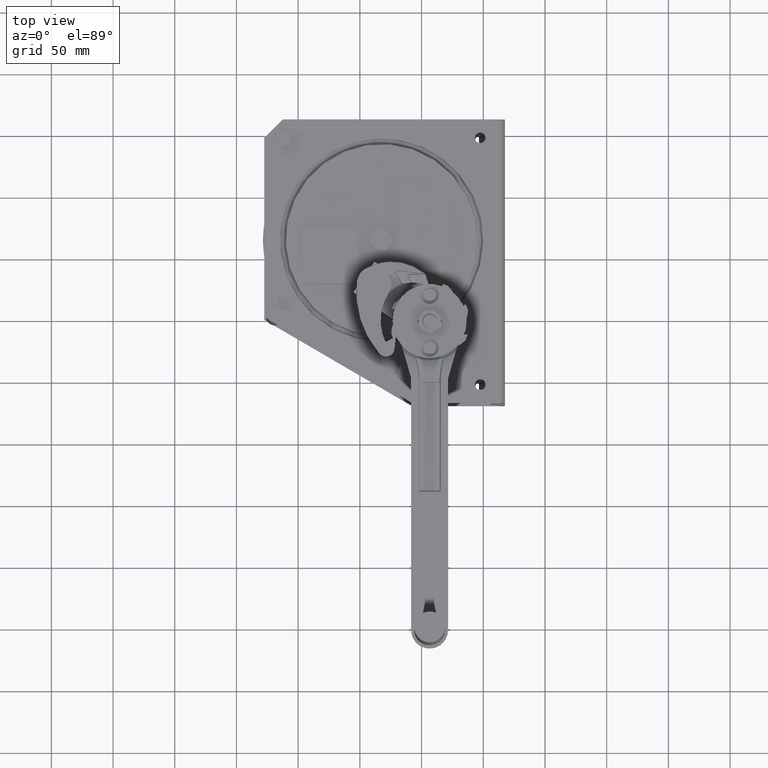
[diagram: clean part render]
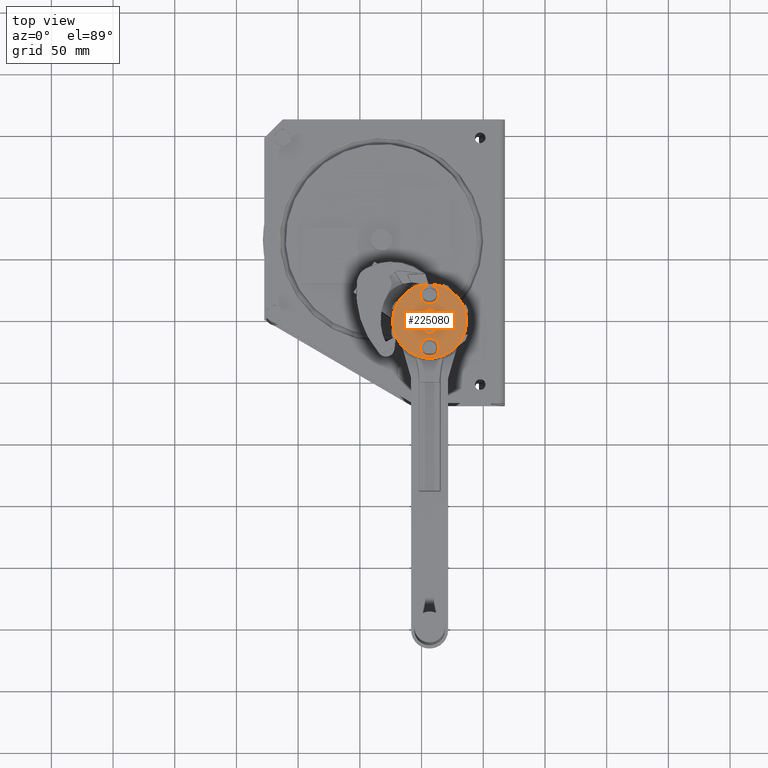
[diagram: same view with one face highlighted and labeled with its STEP entity id]
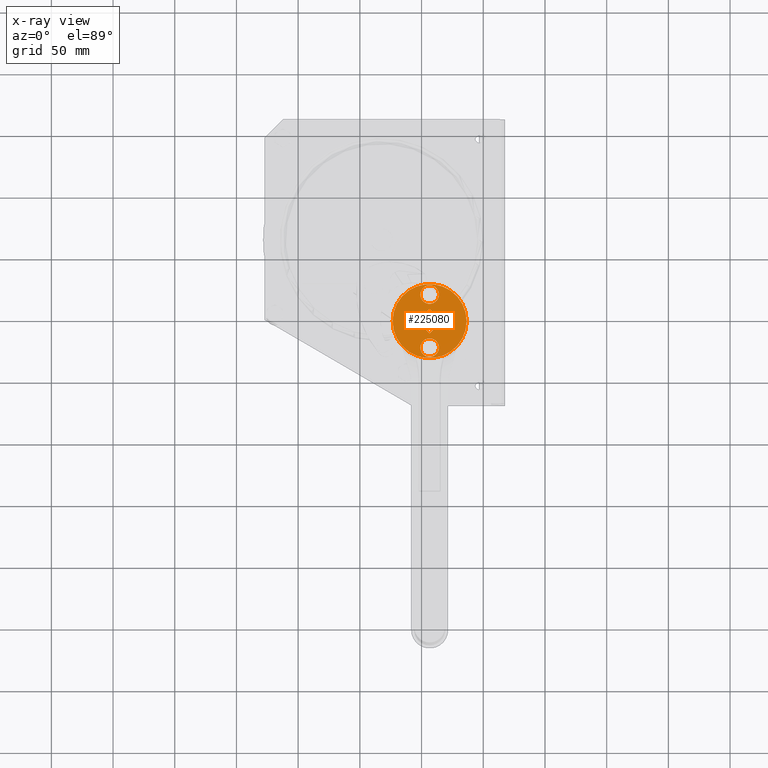
[diagram: x-ray of the same camera — body ghosted, the highlighted face saturated]
A machine part, top view. The second image highlights one B-rep face of the part: STEP entity #225080.
The next image is the same camera in x-ray: the body ghosted, the highlighted face saturated — about 0% of this face is hidden behind the body in this view.
In plain terms, the highlighted planar face has unit normal (0, -0, 1).
Its self-contained STEP definition (entity closure, byte-faithful):
#1410=CARTESIAN_POINT('',(2.72425594956256,242.824761012951,
20.2372583002029));
#1420=VERTEX_POINT('',#1410);
#1450=CARTESIAN_POINT('',(-16.6020037060522,223.498501357336,
20.2372583002029));
#1460=DIRECTION('',(0.707106781186548,0.707106781186547,0.));
#1470=VECTOR('',#1460,1.);
#1480=LINE('',#1450,#1470);
#1490=CARTESIAN_POINT('',(3.90798504668055E-13,240.100505063389,
20.2372583002029));
#1500=VERTEX_POINT('',#1490);
#1510=EDGE_CURVE('',#1500,#1420,#1480,.T.);
#2880=CARTESIAN_POINT('',(7.50000000000039,271.5,20.2372583002029));
#2890=VERTEX_POINT('',#2880);
#2920=CARTESIAN_POINT('',(3.90798504668055E-13,271.5,20.2372583002029));
#2930=DIRECTION('',(0.,0.,1.));
#2940=DIRECTION('',(1.,0.,0.));
#2950=AXIS2_PLACEMENT_3D('',#2920,#2930,#2940);
#2960=CIRCLE('',#2950,7.5);
#2970=CARTESIAN_POINT('',(-7.49999999999961,271.5,20.2372583002029));
#2980=VERTEX_POINT('',#2970);
#2990=EDGE_CURVE('',#2980,#2890,#2960,.T.);
#28510=CARTESIAN_POINT('',(-7.17523898704911,247.275744050438,
20.2372583002029));
#28520=VERTEX_POINT('',#28510);
#28550=CARTESIAN_POINT('',(-16.6020037060522,256.702508769441,
20.2372583002029));
#28560=DIRECTION('',(0.707106781186548,-0.707106781186547,0.));
#28570=VECTOR('',#28560,1.);
#28580=LINE('',#28550,#28570);
#28590=CARTESIAN_POINT('',(-9.89949493661128,250.,20.2372583002029));
#28600=VERTEX_POINT('',#28590);
#28610=EDGE_CURVE('',#28600,#28520,#28580,.T.);
#29320=CARTESIAN_POINT('',(17.0681592795538,242.831335657059,
20.2372583002029));
#29330=DIRECTION('',(-0.707106781186547,0.707106781186548,0.));
#29340=VECTOR('',#29330,1.);
#29350=LINE('',#29320,#29340);
#29360=CARTESIAN_POINT('',(2.72425594956256,257.17523898705,
20.2372583002029));
#29370=VERTEX_POINT('',#29360);
#29380=CARTESIAN_POINT('',(3.90798504668055E-13,259.899494936612,
20.2372583002029));
#29390=VERTEX_POINT('',#29380);
#29400=EDGE_CURVE('',#29370,#29390,#29350,.T.);
#32460=CARTESIAN_POINT('',(7.17523898704989,252.724255949563,
20.2372583002029));
#32470=VERTEX_POINT('',#32460);
#32500=CARTESIAN_POINT('',(9.89949493661206,250.,20.2372583002029));
#32510=VERTEX_POINT('',#32500);
#32520=EDGE_CURVE('',#32510,#32470,#29350,.T.);
#71910=CARTESIAN_POINT('',(7.17523898704989,247.275744050438,
20.2372583002029));
#71920=VERTEX_POINT('',#71910);
#71930=EDGE_CURVE('',#71920,#32510,#1480,.T.);
#101930=CARTESIAN_POINT('',(-2.72425594956177,257.17523898705,
20.2372583002029));
#101940=VERTEX_POINT('',#101930);
#101970=CARTESIAN_POINT('',(-16.6020037060522,243.297491230559,
20.2372583002029));
#101980=DIRECTION('',(-0.707106781186548,-0.707106781186547,0.));
#101990=VECTOR('',#101980,1.);
#102000=LINE('',#101970,#101990);
#102010=EDGE_CURVE('',#29390,#101940,#102000,.T.);
#102850=CARTESIAN_POINT('',(-7.17523898704911,252.724255949563,
20.2372583002029));
#102860=VERTEX_POINT('',#102850);
#102870=EDGE_CURVE('',#102860,#28600,#102000,.T.);
#103290=CARTESIAN_POINT('',(-2.72425594956177,242.824761012951,
20.2372583002029));
#103300=VERTEX_POINT('',#103290);
#103310=EDGE_CURVE('',#103300,#1500,#28580,.T.);
#222050=CARTESIAN_POINT('',(3.90798504668055E-13,250.,20.2372583002029))
;
#222060=DIRECTION('',(0.,0.,1.));
#222070=DIRECTION('',(1.,0.,0.));
#222080=AXIS2_PLACEMENT_3D('',#222050,#222060,#222070);
#222090=CIRCLE('',#222080,7.675);
#222100=EDGE_CURVE('',#28520,#103300,#222090,.T.);
#224100=EDGE_CURVE('',#101940,#102860,#222090,.T.);
#224180=EDGE_CURVE('',#32470,#29370,#222090,.T.);
#224340=EDGE_CURVE('',#1420,#71920,#222090,.T.);
#224540=CARTESIAN_POINT('',(-16.6020037060522,242.831335657059,
20.2372583002029));
#224550=DIRECTION('',(0.,0.,1.));
#224560=DIRECTION('',(1.,0.,0.));
#224570=AXIS2_PLACEMENT_3D('',#224540,#224550,#224560);
#224580=PLANE('',#224570);
#224590=CARTESIAN_POINT('',(3.90798504668055E-13,228.5,20.2372583002029)
);
#224600=DIRECTION('',(0.,0.,1.));
#224610=DIRECTION('',(1.,0.,0.));
#224620=AXIS2_PLACEMENT_3D('',#224590,#224600,#224610);
#224630=CIRCLE('',#224620,7.5);
#224640=CARTESIAN_POINT('',(7.50000000000039,228.5,20.2372583002029));
#224650=VERTEX_POINT('',#224640);
#224660=CARTESIAN_POINT('',(-7.49999999999961,228.5,20.2372583002029));
#224670=VERTEX_POINT('',#224660);
#224680=EDGE_CURVE('',#224650,#224670,#224630,.T.);
#224690=ORIENTED_EDGE('',*,*,#224680,.F.);
#224700=EDGE_CURVE('',#224670,#224650,#224630,.T.);
#224710=ORIENTED_EDGE('',*,*,#224700,.F.);
#224720=EDGE_LOOP('',(#224710,#224690));
#224730=FACE_BOUND('',#224720,.T.);
#224740=ORIENTED_EDGE('',*,*,#1510,.F.);
#224750=ORIENTED_EDGE('',*,*,#224340,.F.);
#224760=ORIENTED_EDGE('',*,*,#71930,.F.);
#224770=ORIENTED_EDGE('',*,*,#32520,.F.);
#224780=ORIENTED_EDGE('',*,*,#224180,.F.);
#224790=ORIENTED_EDGE('',*,*,#29400,.F.);
#224800=ORIENTED_EDGE('',*,*,#102010,.F.);
#224810=ORIENTED_EDGE('',*,*,#224100,.F.);
#224820=ORIENTED_EDGE('',*,*,#102870,.F.);
#224830=ORIENTED_EDGE('',*,*,#28610,.F.);
#224840=ORIENTED_EDGE('',*,*,#222100,.F.);
#224850=ORIENTED_EDGE('',*,*,#103310,.F.);
#224860=EDGE_LOOP('',(#224850,#224840,#224830,#224820,#224810,#224800,
#224790,#224780,#224770,#224760,#224750,#224740));
#224870=FACE_BOUND('',#224860,.T.);
#224880=EDGE_CURVE('',#2890,#2980,#2960,.T.);
#224890=ORIENTED_EDGE('',*,*,#224880,.F.);
#224900=ORIENTED_EDGE('',*,*,#2990,.F.);
#224910=EDGE_LOOP('',(#224900,#224890));
#224920=FACE_BOUND('',#224910,.T.);
#224930=CARTESIAN_POINT('',(3.90798504668055E-13,250.,20.2372583002029))
;
#224940=DIRECTION('',(0.,0.,1.));
#224950=DIRECTION('',(1.,0.,0.));
#224960=AXIS2_PLACEMENT_3D('',#224930,#224940,#224950);
#224970=CIRCLE('',#224960,30.);
#224980=CARTESIAN_POINT('',(30.0000000000004,250.,20.2372583002029));
#224990=VERTEX_POINT('',#224980);
#225000=CARTESIAN_POINT('',(-29.9999999999996,250.,20.2372583002029));
#225010=VERTEX_POINT('',#225000);
#225020=EDGE_CURVE('',#224990,#225010,#224970,.T.);
#225030=ORIENTED_EDGE('',*,*,#225020,.T.);
#225040=EDGE_CURVE('',#225010,#224990,#224970,.T.);
#225050=ORIENTED_EDGE('',*,*,#225040,.T.);
#225060=EDGE_LOOP('',(#225050,#225030));
#225070=FACE_OUTER_BOUND('',#225060,.T.);
#225080=ADVANCED_FACE('',(#224730,#224870,#224920,#225070),#224580,.T.);